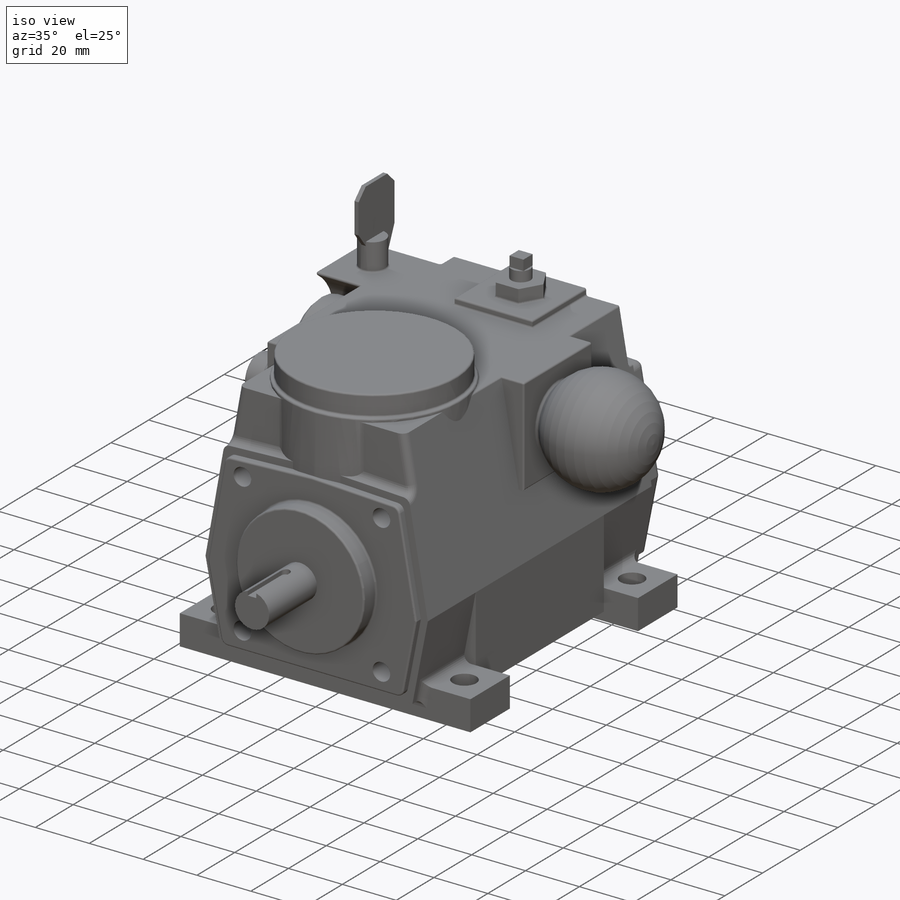
[diagram: iso view]
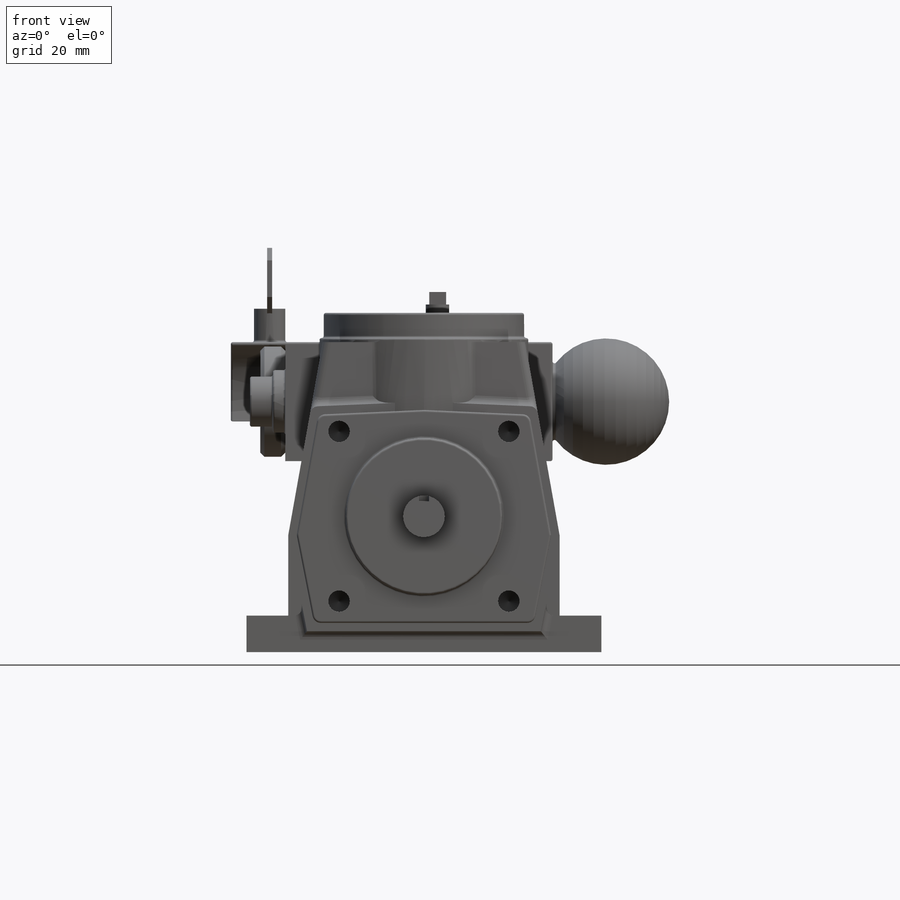
[diagram: front view]
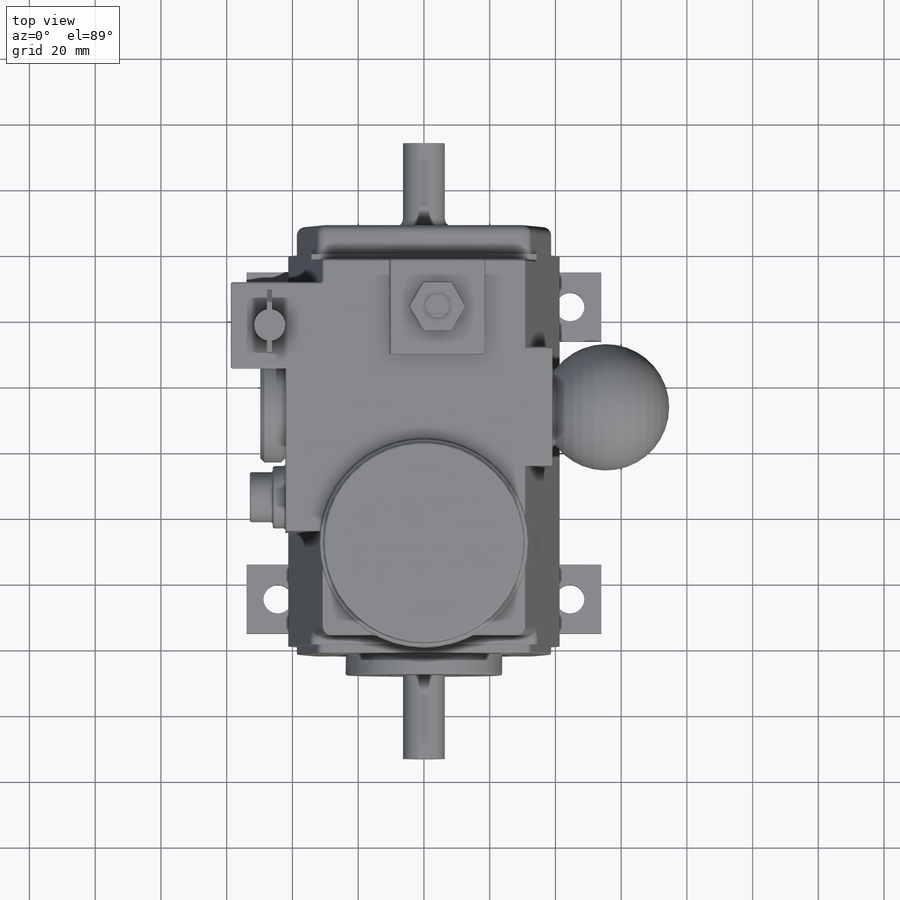
[diagram: top view]
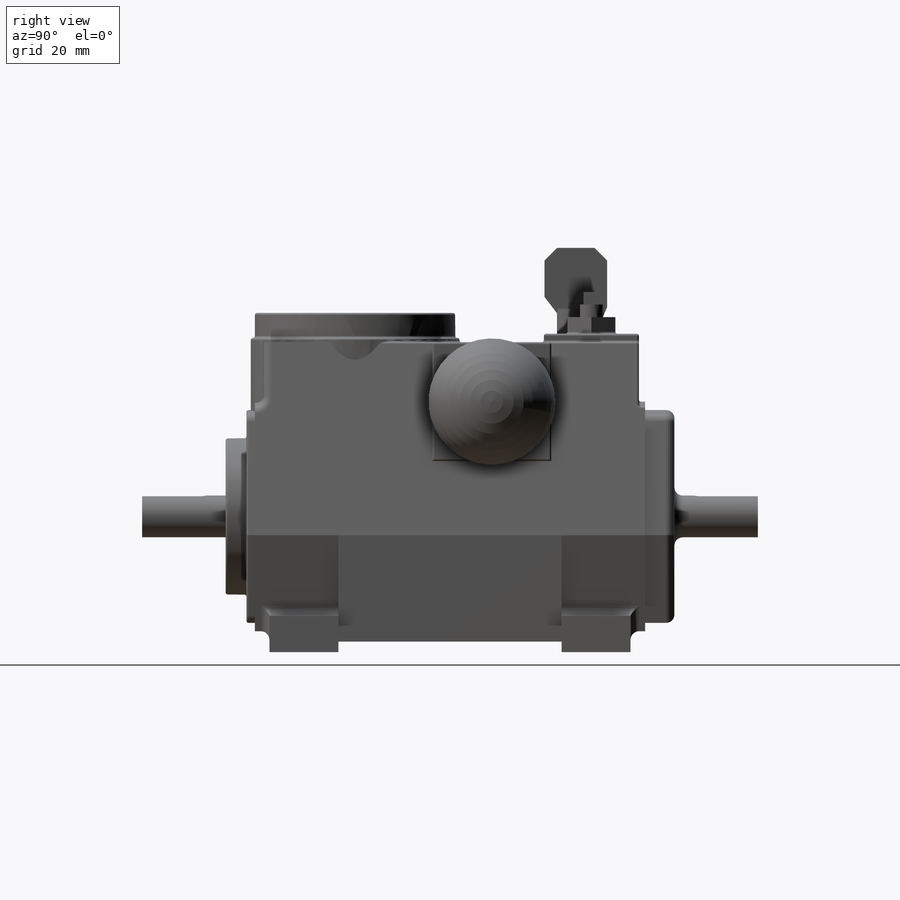
[diagram: right view]
SOLIDWORKS PART (.sldprt)
format: sldprt  version: not decoded by parser v0  size: 1,442,304 bytes
history: native  units: mm
features: sketch x29, extrude x21, plane x8, cut_extrude x5, thread x4, revolve x2, chamfer x2, fillet x2, material x1, mirror x1, hole x1, boolean_combine x1 (+15 scaffold rows collapsed)
feature tree (92):
  scaffold x15  (default folders/planes/origin — collapsed)
  material  "Cast Alloy Steel"
  sketch  "Sketch3"  dims[c1.D3=~8.73125mm c1.D5=17.4625mm c1.D1=107.95mm c1.D2=88.9mm c1.D4=20.955mm c2.D5=88.9mm]
  extrude  "P"  Depth=11.1125mm
  plane  "m"  Offset=41.275mm
  sketch  " A"  dims[D2=12.7mm D1=41.275mm]
  extrude  "H"  Depth=187.325mm
  plane  "K"  Offset=25.4mm
  sketch  "B"  dims[D1=47.625mm]
  extrude  "S"  Depth=6.35mm
  sketch  "Sketch6"  dims[c1.D1=69.85mm c1.D2=68.58mm c1.D3=82.55mm c1.D4=71.12mm c1.D5=35.56mm c1.D6=~2.163454mm c2.D6=185.0deg]
  extrude  "K from end"  Depth=25.4mm
  sketch  "Sketch7"  dims[D1=3.175mm]
  extrude  "Boss-Extrude6"  [1 undecoded]
  mirror  "Mirror2"
  plane  "L"  Offset=103.1875mm
  sketch  "Sketch32"  dims[D1=2.54mm D2=0.0mm]
  cut_extrude  "Cut-Extrude6"  Depth=2.54mm
  sketch  "Sketch8"  dims[D1=63.5mm]
  extrude  "Dial"  Depth=36.322mm
  sketch  "Sketch33"  dims[D1=8.89mm]
  extrude  "Boss-Extrude8"  Depth=2.54mm
  sketch  "Sketch34"  dims[D1=0.0mm D2=1.27mm]
  cut_extrude  "Cut-Extrude7"  Depth=7.62mm
  sketch  "Sketch35"  dims[D1=0.0mm D2=2.54mm]
  cut_extrude  "Cut-Extrude8"  Depth=8.89mm
  hole  "F"  Diameter=6.5278mm Depth=32.512mm
  sketch  "C"  dims[c1.D1=73.025mm c1.D2=73.025mm c2.D2=45.0deg]
  sketch  "Sketch36"  dims[hole-wizard template sketch: 47 standard entries collapsed; hole parameters kept: c15.Tap Drill Depth=32.512mm c15.D3=~14.816244mm c15.Drill Angle=118.0deg]
  thread  "Hole Thread1"  Diameter=25.4mm  [1 undecoded]
  thread  "Hole Thread2"  Diameter=25.4mm  [1 undecoded]
  thread  "Hole Thread3"  Diameter=25.4mm  [1 undecoded]
  thread  "Hole Thread4"  Diameter=25.4mm  [1 undecoded]
  plane  "T"  Offset=76.2mm
  plane  "U"  Offset=80.9625mm
  plane  "J"  Offset=74.6125mm
  sketch  "Sketch38"  dims[D1=38.481mm D2=9.525mm D3=50.8mm]
  revolve  "Knob"  Angle=360deg
  sketch  "Sketch39"
  extrude  "Boss-Extrude9"  Depth=39.116mm
  plane  "I"  Offset=133.35mm
  sketch  "Sketch41"  dims[D1=7.62mm D2=3.175mm]
  cut_extrude  "Cut-Extrude9"  Depth=39.116mm
  sketch  "Sketch42"  dims[D1=0.0mm]
  extrude  "Boss-Extrude10"  Depth=81.28mm
  sketch  "Sketch44"
  extrude  "Boss-Extrude12"  Depth=19.812mm
  sketch  "Sketch45"  dims[D1=24.13mm D2=62.23mm]
  cut_extrude  "Cut-Extrude10"  Depth=19.812mm
  boolean_combine  "Combine1"
  sketch  "Sketch46"  dims[D1=33.528mm]
  extrude  "Boss-Extrude13"  Depth=7.62mm
  sketch  "Sketch48"  dims[D1=27.94mm]
  extrude  "Boss-Extrude14"  [1 undecoded]
  chamfer  "Chamfer1"  Distance=1.27mm Angle=45deg
  sketch  "Sketch50"
  extrude  "Boss-Extrude15"  [1 undecoded]
  sketch  "Sketch51"  dims[D1=19.05mm]
  extrude  "Boss-Extrude16"  Depth=3.81mm
  sketch  "Sketch52"  dims[D1=1.905mm]
  extrude  "Boss-Extrude17"  Depth=6.985mm
  sketch  "Sketch53"
  extrude  "Boss-Extrude18"  Depth=2.54mm
  sketch  "Sketch54"  dims[D1=14.605mm]
  extrude  "Boss-Extrude19"  Depth=5.08mm
  sketch  "Sketch55"  dims[D1=7.112mm]
  extrude  "Boss-Extrude20"  Depth=3.81mm
  sketch  "Sketch56"
  extrude  "Boss-Extrude21"  Depth=3.81mm
  sketch  "Sketch57"  dims[D1=9.525mm]
  extrude  "Boss-Extrude22"  Depth=10.16mm
  plane  "Plane6"
  sketch  "Sketch58"  dims[D1=19.05mm D2=27.94mm]
  extrude  "Boss-Extrude23"  Depth=1.524mm
  chamfer  "Chamfer2"  Distance=3.81mm Angle=45deg
  fillet  "Fillet1"  Radius=0.635mm
  fillet  "Fillet2"  Radius=2.54mm
  revolve  "Combine2"  [1 undecoded]
decode coverage: 57 of 68 modeling features carry decoded parameters
note: ~ marks probable driven/reference dimensions
note: 8 parameter values undecoded
summary: no parameter record found for 4 features
note: suppression state not decoded; provenance and decode notes live in map.json
